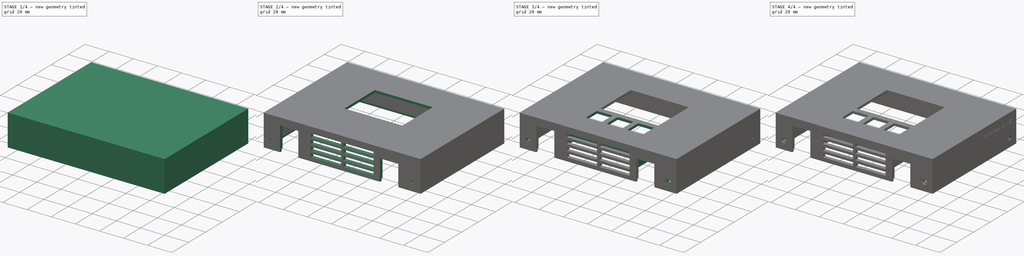
[diagram: build sequence overview — one tinted view per stage of 4, left to right]
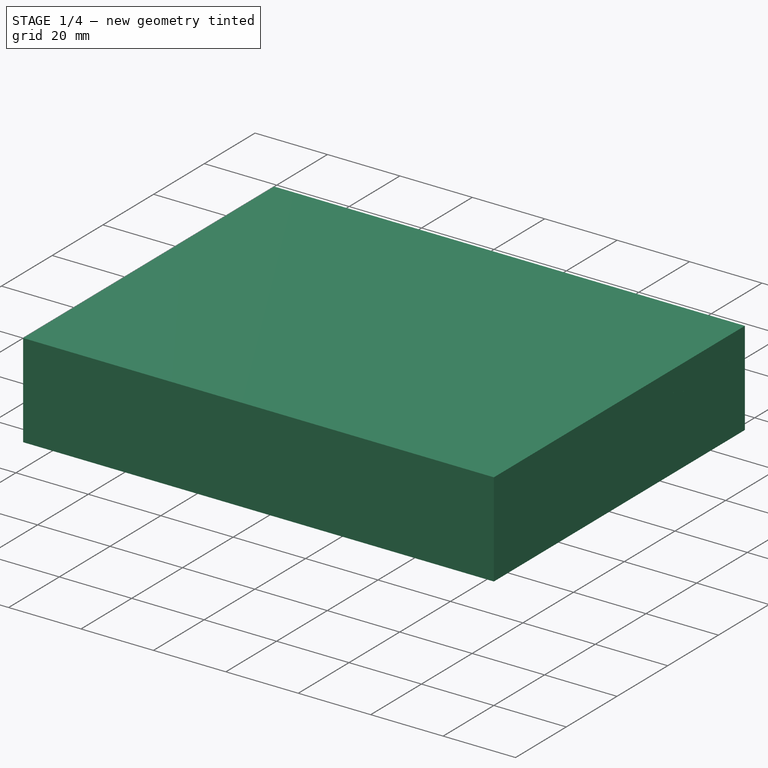
[diagram: stage 1 of 4 — iso view after this stage's code; geometry added in this stage tinted green]
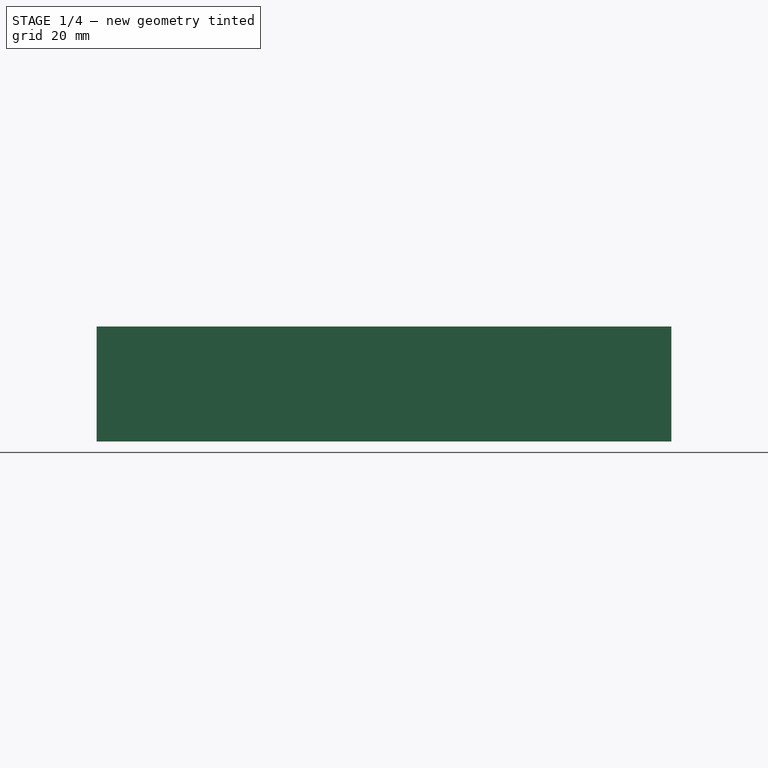
[diagram: stage 1 of 4 — front view after this stage's code; geometry added in this stage tinted green]
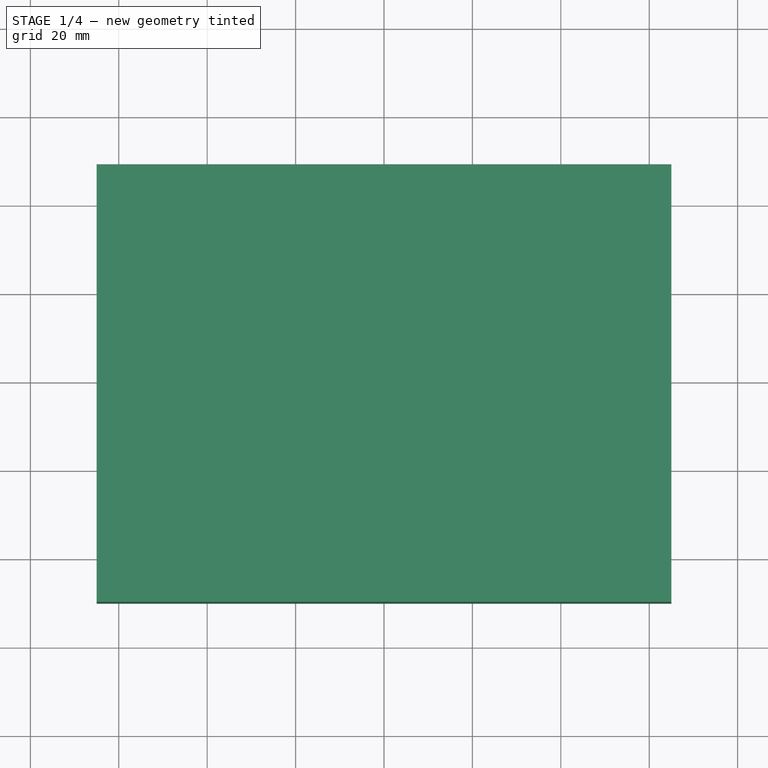
[diagram: stage 1 of 4 — top view after this stage's code; geometry added in this stage tinted green]
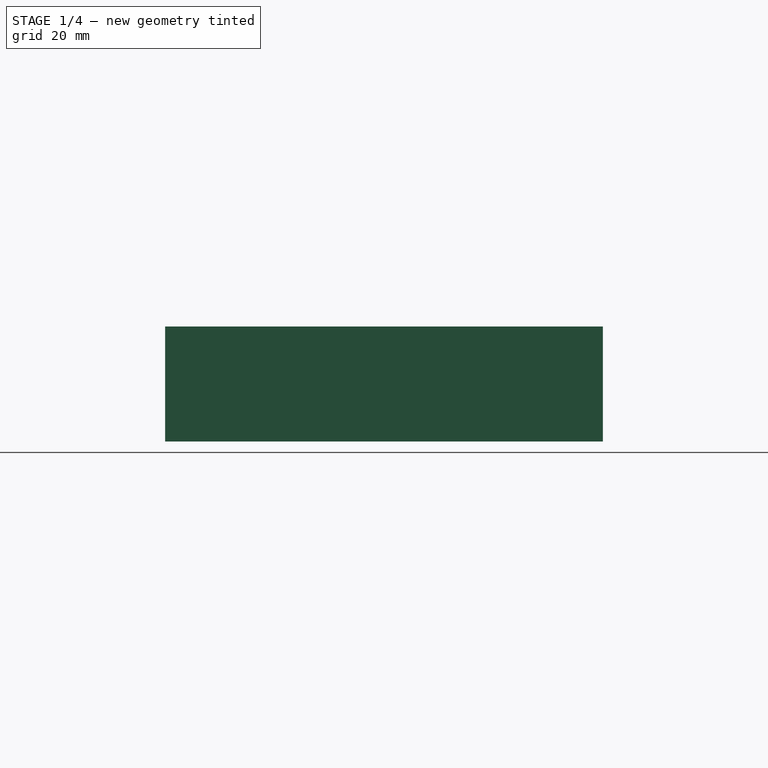
[diagram: stage 1 of 4 — right view after this stage's code; geometry added in this stage tinted green]
FCSTD DOCUMENT  (FreeCAD 0.19R24276 (Git))
Label: wall-sensor-of-room-temperature-top-part
License: All rights reserved
LicenseURL: http://en.wikipedia.org/wiki/All_rights_reserved
objects: Part::Feature×18, Sketcher::SketchObject×8, PartDesign::Pocket×4, PartDesign::Hole×4, PartDesign::Pad×3, Part::Part2DObjectPython×2, PartDesign::FeatureBase×1, PartDesign::Body×1, Part::Extrusion×1, Part::Cut×1
note: 54 computed .brp shape members not serialized (recipe doc carries the construction recipe); baked Part::Feature solids carry a one-line shape summary decoded from their .brp

FEATURE [Sketcher::SketchObject] Sketch
  FullyConstrained = true
  MapMode = 5
  Support = -> [XY_Plane]
  sketch-geometry (4):
    g0: LineSegment StartX=-65 StartY=49 StartZ=0 EndX=65 EndY=49 EndZ=0
    g1: LineSegment StartX=65 StartY=49 StartZ=0 EndX=65 EndY=-50 EndZ=0
    g2: LineSegment StartX=65 StartY=-50 StartZ=0 EndX=-65 EndY=-50 EndZ=0
    g3: LineSegment StartX=-65 StartY=-50 StartZ=0 EndX=-65 EndY=49 EndZ=0
  constraints (12):
    c: Coincident(g0,g1)
    c: Coincident(g1,g2)
    c: Coincident(g2,g3)
    c: Coincident(g3,g0)
    c: Horizontal(g0)
    c: Horizontal(g2)
    c: Vertical(g1)
    c: Vertical(g3)
    c: DistanceX(g-1,g0) = 65
    c: DistanceY(g-1,g0) = 49
    c: DistanceX(g0,g-1) = 65
    c: DistanceY(g1,g-1) = 50
FEATURE [Part::Feature] Wire044
  Placement = pos=(-53.5,45,0) rot=(0,0,1;0rad)
  shape: bbox 12.7 x 12.7 x 2e-07 mm, 0 faces, 0 solids (baked)
FEATURE [Part::Feature] Wire045
  Placement = pos=(-53.5,45,0) rot=(0,0,1;0rad)
  shape: bbox 12.67 x 12.7 x 2e-07 mm, 0 faces, 0 solids (baked)
FEATURE [Part::Feature] Wire046
  Placement = pos=(-53.5,45,0) rot=(0,0,1;0rad)
  shape: bbox 12.7 x 12.7 x 2e-07 mm, 0 faces, 0 solids (baked)
FEATURE [Part::Feature] Wire047
  Placement = pos=(-53.5,45,0) rot=(0,0,1;0rad)
  shape: bbox 2e-07 x 2.54 x 2e-07 mm, 0 faces, 0 solids (baked)
FEATURE [Part::Feature] Wire048
  Placement = pos=(-53.5,45,0) rot=(0,0,1;0rad)
  shape: bbox 3.81 x 2e-07 x 2e-07 mm, 0 faces, 0 solids (baked)
FEATURE [Part::Feature] Wire049 .. Wire055  x7 (patterned run collapsed; names and placements below)
  shape: bbox 2.2 x 2.2 x 2e-07 mm, 0 faces, 0 solids (baked)
  placements: all 7 at pos=(-53.5,45,0) rot=(0,0,1;0rad)
FEATURE [Part::Feature] Wire056
  Placement = pos=(-53.5,45,0) rot=(0,0,1;0rad)
  shape: bbox 107 x 90.03 x 2e-07 mm, 0 faces, 0 solids (baked)
FEATURE [Part::Feature] Wire057
  Placement = pos=(-53.5,45,0) rot=(0,0,1;0rad)
  shape: bbox 2.921 x 11.81 x 2e-07 mm, 0 faces, 0 solids (baked)
FEATURE [Part::Feature] Wire058
  Placement = pos=(-53.5,45,0) rot=(0,0,1;0rad)
  shape: bbox 2.9 x 28.3 x 2e-07 mm, 0 faces, 0 solids (baked)
FEATURE [Part::Feature] Wire059
  Placement = pos=(-53.5,45,0) rot=(0,0,1;0rad)
  shape: bbox 30.97 x 2.9 x 2e-07 mm, 0 faces, 0 solids (baked)
FEATURE [Part::Feature] Wire060
  Placement = pos=(-53.5,45,0) rot=(0,0,1;0rad)
  shape: bbox 2.2 x 2.2 x 2e-07 mm, 0 faces, 0 solids (baked)
FEATURE [Part::Feature] Wire061
  Placement = pos=(-53.5,45,0) rot=(0,0,1;0rad)
  shape: bbox 2.2 x 2.2 x 2e-07 mm, 0 faces, 0 solids (baked)
FEATURE [PartDesign::FeatureBase] BaseFeature
  BaseFeature = -> Wire059
FEATURE [PartDesign::Pad] Pad
  BaseFeature = -> BaseFeature
  Direction = (1,1,1)
  Length = 2
  Length2 = 100
  Profile = -> Sketch
  Reversed = true
  Type = 0
FEATURE [Sketcher::SketchObject] Sketch001  label="walls"
  FullyConstrained = false
  MapMode = 5
  Placement = pos=(0,0,-2) rot=(1,0,0;3.14159rad)
  Support = -> [Pad]
  sketch-geometry (8):
    g0: LineSegment StartX=-65 StartY=50 StartZ=0 EndX=65 EndY=50 EndZ=0
    g1: LineSegment StartX=65 StartY=50 StartZ=0 EndX=65 EndY=-49 EndZ=0
    g2: LineSegment StartX=65 StartY=-49 StartZ=0 EndX=-65 EndY=-49 EndZ=0
    g3: LineSegment StartX=-65 StartY=-49 StartZ=0 EndX=-65 EndY=50 EndZ=0
    g4: LineSegment StartX=-62 StartY=47 StartZ=0 EndX=62 EndY=47 EndZ=0
    g5: LineSegment StartX=62 StartY=47 StartZ=0 EndX=62 EndY=-46 EndZ=0
    g6: LineSegment StartX=-62 StartY=47 StartZ=0 EndX=-62 EndY=-46 EndZ=0
    g7: LineSegment StartX=-62 StartY=-46 StartZ=0 EndX=62 EndY=-46 EndZ=0
  constraints (16):
    c: Horizontal(g0)
    c: Coincident(g1,g0)
    c: Vertical(g1)
    c: Coincident(g2,g1)
    c: Horizontal(g2)
    c: Coincident(g3,g2)
    c: Coincident(g3,g0)
    c: Vertical(g3)
    c: Horizontal(g4)
    c: Coincident(g5,g4)
    c: Vertical(g5)
    c: Coincident(g6,g4)
    c: Vertical(g6)
    c: Coincident(g7,g6)
    c: Coincident(g7,g5)
    c: Horizontal(g7)
FEATURE [PartDesign::Pad] Pad001
  BaseFeature = -> Pad
  Direction = (1,1,1)
  Length = 24
  Length2 = 100
  Profile = -> Sketch001
  Type = 0
FEATURE [PartDesign::Body] Body
  BaseFeature = -> Wire059
  Group = -> [BaseFeature,Sketch,Pad,Sketch001,Pad001,Sketch002,Pocket,Sketch003,Pocket001,Sketch004,Pocket002,Sketch005,Pocket003,Sketch006,Pad002,ShapeString,Sketch007,Hole,Hole001,Hole002,Hole003]
  Origin = -> Origin
  Tip = -> Hole003
FEATURE [Part::Part2DObjectPython] ShapeString001  # Draft 2D object (typed FeaturePython)
  FontFile = <path>
  Placement = pos=(65,11,-8) rot=(0.57735,0.57735,0.57735;2.0944rad)
  Size = 3
  String = roman-labovsky.cz
  Tracking = 0
FEATURE [Part::Extrusion] Extrude
  Base = -> ShapeString001
  Dir = (1,0,0)
  DirMode = 2
  FaceMakerClass = Part::FaceMakerBullseye
  LengthFwd = 0.7
  LengthRev = 0
  Reversed = true
  Solid = false
  Symmetric = false
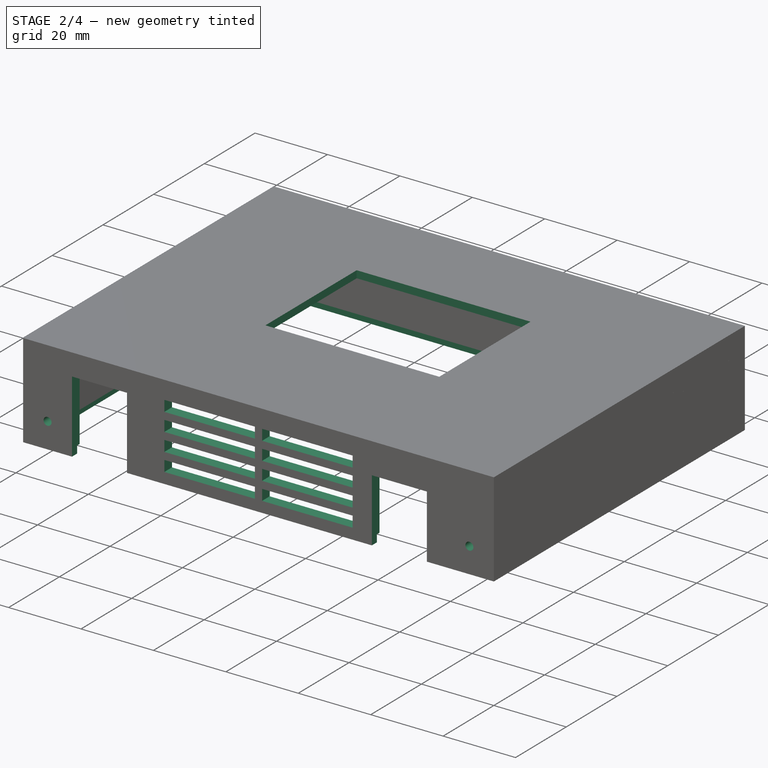
[diagram: stage 2 of 4 — iso view after this stage's code; geometry added in this stage tinted green]
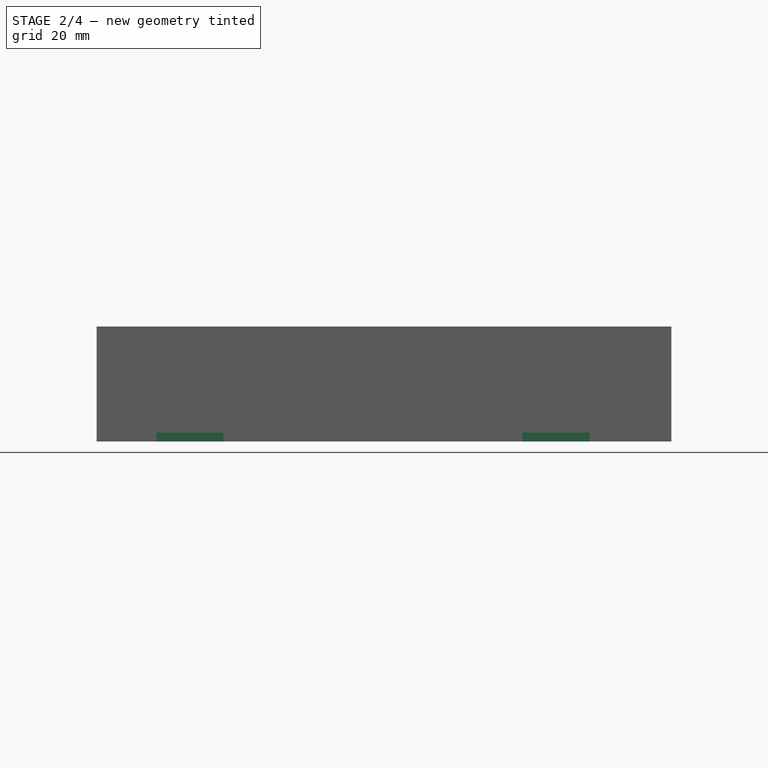
[diagram: stage 2 of 4 — front view after this stage's code; geometry added in this stage tinted green]
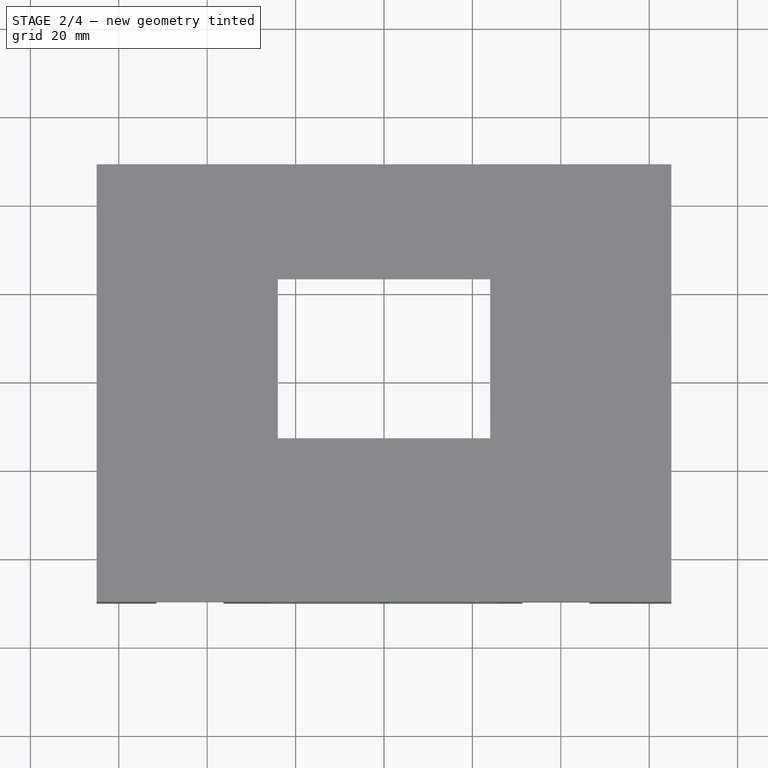
[diagram: stage 2 of 4 — top view after this stage's code; geometry added in this stage tinted green]
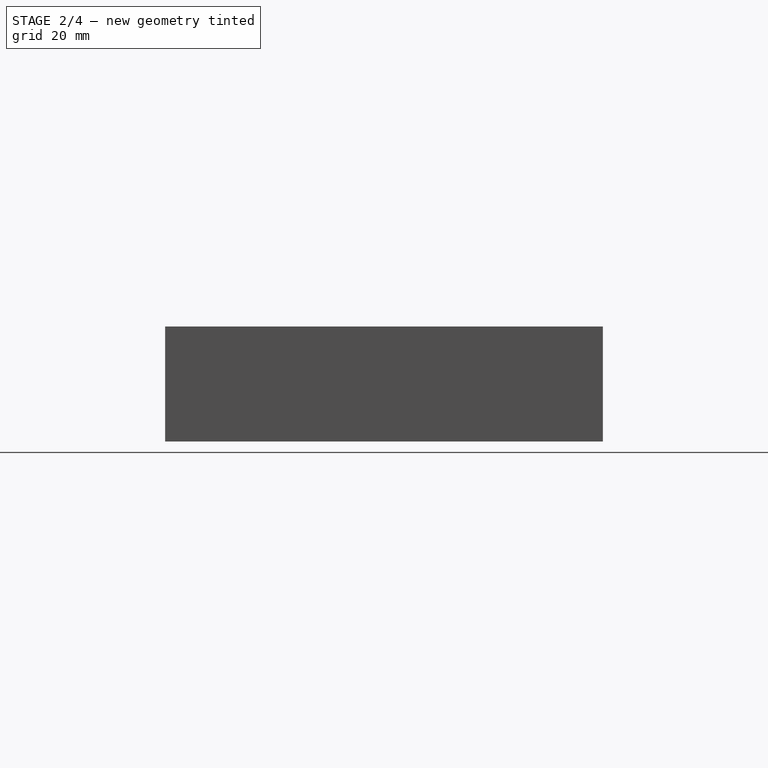
[diagram: stage 2 of 4 — right view after this stage's code; geometry added in this stage tinted green]
FEATURE [Sketcher::SketchObject] Sketch002  label="bottom_part_rabbet"
  FullyConstrained = false
  MapMode = 5
  Placement = pos=(0,0,-26) rot=(1,0,0;3.14159rad)
  Support = -> [Pad001]
  sketch-geometry (8):
    g0: LineSegment StartX=-63 StartY=48 StartZ=0 EndX=63 EndY=48 EndZ=0
    g1: LineSegment StartX=63 StartY=48 StartZ=0 EndX=63 EndY=-47 EndZ=0
    g2: LineSegment StartX=63 StartY=-47 StartZ=0 EndX=-63 EndY=-47 EndZ=0
    g3: LineSegment StartX=-63 StartY=-47 StartZ=0 EndX=-63 EndY=48 EndZ=0
    g4: LineSegment StartX=-62 StartY=47 StartZ=0 EndX=62 EndY=47 EndZ=0
    g5: LineSegment StartX=62 StartY=47 StartZ=0 EndX=62 EndY=-46 EndZ=0
    g6: LineSegment StartX=62 StartY=-46 StartZ=0 EndX=-62 EndY=-46 EndZ=0
    g7: LineSegment StartX=-62 StartY=-46 StartZ=0 EndX=-62 EndY=47 EndZ=0
  constraints (16):
    c: Horizontal(g0)
    c: Coincident(g1,g0)
    c: Vertical(g1)
    c: Coincident(g2,g1)
    c: Horizontal(g2)
    c: Coincident(g3,g2)
    c: Coincident(g3,g0)
    c: Vertical(g3)
    c: Horizontal(g4)
    c: Coincident(g5,g4)
    c: Vertical(g5)
    c: Coincident(g6,g5)
    c: Horizontal(g6)
    c: Coincident(g7,g6)
    c: Coincident(g7,g4)
    c: Vertical(g7)
FEATURE [PartDesign::Pocket] Pocket
  BaseFeature = -> Pad001
  Length = 2
  Length2 = 100
  Profile = -> Sketch002
  Type = 0
FEATURE [Sketcher::SketchObject] Sketch003  label="fron_holes"
  FullyConstrained = false
  MapMode = 5
  Placement = pos=(0,-50,0) rot=(1,0,0;1.5708rad)
  Support = -> [Pocket]
  sketch-geometry (42):
    g0: LineSegment StartX=-26 StartY=-5 StartZ=0 EndX=-1 EndY=-5 EndZ=0
    g1: LineSegment StartX=-1 StartY=-5 StartZ=0 EndX=-1 EndY=-8 EndZ=0
    g2: LineSegment StartX=-1 StartY=-8 StartZ=0 EndX=-26 EndY=-8 EndZ=0
    g3: LineSegment StartX=-26 StartY=-8 StartZ=0 EndX=-26 EndY=-5 EndZ=0
    g4: LineSegment StartX=-26 StartY=-10 StartZ=0 EndX=-1 EndY=-10 EndZ=0
    g5: LineSegment StartX=-1 StartY=-10 StartZ=0 EndX=-1 EndY=-13 EndZ=0
    g6: LineSegment StartX=-1 StartY=-13 StartZ=0 EndX=-26 EndY=-13 EndZ=0
    g7: LineSegment StartX=-26 StartY=-13 StartZ=0 EndX=-26 EndY=-10 EndZ=0
    g8: LineSegment StartX=-26 StartY=-15 StartZ=0 EndX=-1 EndY=-15 EndZ=0
    g9: LineSegment StartX=-1 StartY=-15 StartZ=0 EndX=-1 EndY=-18 EndZ=0
    g10: LineSegment StartX=-1 StartY=-18 StartZ=0 EndX=-26 EndY=-18 EndZ=0
    g11: LineSegment StartX=-26 StartY=-18 StartZ=0 EndX=-26 EndY=-15 EndZ=0
    g12: LineSegment StartX=-26 StartY=-20 StartZ=0 EndX=-1 EndY=-20 EndZ=0
    g13: LineSegment StartX=-1 StartY=-20 StartZ=0 EndX=-1 EndY=-23 EndZ=0
    g14: LineSegment StartX=-1 StartY=-23 StartZ=0 EndX=-26 EndY=-23 EndZ=0
    g15: LineSegment StartX=-26 StartY=-23 StartZ=0 EndX=-26 EndY=-20 EndZ=0
    g16: LineSegment StartX=1 StartY=-5 StartZ=0 EndX=26 EndY=-5 EndZ=0
    g17: LineSegment StartX=26 StartY=-5 StartZ=0 EndX=26 EndY=-8 EndZ=0
    g18: LineSegment StartX=26 StartY=-8 StartZ=0 EndX=1 EndY=-8 EndZ=0
    g19: LineSegment StartX=1 StartY=-8 StartZ=0 EndX=1 EndY=-5 EndZ=0
    g20: LineSegment StartX=1 StartY=-10 StartZ=0 EndX=26 EndY=-10 EndZ=0
    g21: LineSegment StartX=26 StartY=-10 StartZ=0 EndX=26 EndY=-13 EndZ=0
    g22: LineSegment StartX=26 StartY=-13 StartZ=0 EndX=1 EndY=-13 EndZ=0
    g23: LineSegment StartX=1 StartY=-13 StartZ=0 EndX=1 EndY=-10 EndZ=0
    g24: LineSegment StartX=1 StartY=-15 StartZ=0 EndX=26 EndY=-15 EndZ=0
    g25: LineSegment StartX=26 StartY=-15 StartZ=0 EndX=26 EndY=-18 EndZ=0
    g26: LineSegment StartX=26 StartY=-18 StartZ=0 EndX=1 EndY=-18 EndZ=0
    g27: LineSegment StartX=1 StartY=-18 StartZ=0 EndX=1 EndY=-15 EndZ=0
    g28: LineSegment StartX=1 StartY=-20 StartZ=0 EndX=26 EndY=-20 EndZ=0
    g29: LineSegment StartX=26 StartY=-20 StartZ=0 EndX=26 EndY=-23 EndZ=0
    g30: LineSegment StartX=26 StartY=-23 StartZ=0 EndX=1 EndY=-23 EndZ=0
    g31: LineSegment StartX=1 StartY=-23 StartZ=0 EndX=1 EndY=-20 EndZ=0
    g32: LineSegment StartX=-51.5 StartY=-26 StartZ=0 EndX=-51.5 EndY=-6 EndZ=0
    g33: LineSegment StartX=-51.5 StartY=-6 StartZ=0 EndX=-36.3 EndY=-6 EndZ=0
    g34: LineSegment StartX=-36.3 StartY=-6 StartZ=0 EndX=-36.3 EndY=-26 EndZ=0
    g35: LineSegment StartX=-36.3 StartY=-26 StartZ=0 EndX=-51.5 EndY=-26 EndZ=0
    g36: LineSegment StartX=46.5 StartY=-26 StartZ=0 EndX=46.5 EndY=-8.5 EndZ=0
    g37: LineSegment StartX=46.5 StartY=-8.5 StartZ=0 EndX=31.3 EndY=-8.5 EndZ=0
    g38: LineSegment StartX=31.3 StartY=-8.5 StartZ=0 EndX=31.3 EndY=-26 EndZ=0
    g39: LineSegment StartX=31.3 StartY=-26 StartZ=0 EndX=46.5 EndY=-26 EndZ=0
    g40: Circle CenterX=-58.25 CenterY=-19 CenterZ=0 NormalX=0 NormalY=0 NormalZ=1 AngleXU=0 Radius=1.1
    g41: Circle CenterX=58.2403 CenterY=-19 CenterZ=0 NormalX=0 NormalY=0 NormalZ=1 AngleXU=0 Radius=1.1
  constraints (83):
    c: Coincident(g1,g2)
    c: Coincident(g2,g3)
    c: Coincident(g3,g0)
    c: Horizontal(g0)
    c: Horizontal(g2)
    c: Vertical(g1)
    c: Vertical(g3)
    c: Coincident(g4,g5)
    c: Coincident(g5,g6)
    c: Coincident(g6,g7)
    c: Coincident(g7,g4)
    c: Horizontal(g4)
    c: Horizontal(g6)
    c: Vertical(g5)
    c: Vertical(g7)
    c: Coincident(g8,g9)
    c: Coincident(g9,g10)
    c: Coincident(g10,g11)
    c: Coincident(g11,g8)
    c: Horizontal(g8)
    c: Horizontal(g10)
    c: Vertical(g9)
    c: Vertical(g11)
    c: Coincident(g12,g13)
    c: Coincident(g13,g14)
    c: Coincident(g14,g15)
    c: Coincident(g15,g12)
    c: Horizontal(g12)
    c: Horizontal(g14)
    c: Vertical(g13)
    c: Vertical(g15)
    c: DistanceX(g0,g-1) = 26
    c: Coincident(g16,g17)
    c: Coincident(g17,g18)
    c: Coincident(g18,g19)
    c: Coincident(g19,g16)
    c: Horizontal(g16)
    c: Horizontal(g18)
    c: Vertical(g17)
    c: Vertical(g19)
    c: DistanceX(g-1,g16) = 26
    c: Coincident(g20,g21)
    c: Coincident(g21,g22)
    c: Coincident(g22,g23)
    c: Coincident(g23,g20)
    c: Horizontal(g20)
    c: Horizontal(g22)
    c: Vertical(g21)
    c: Vertical(g23)
    c: Coincident(g24,g25)
    c: Coincident(g25,g26)
    c: Coincident(g26,g27)
    c: Coincident(g27,g24)
    c: Horizontal(g24)
    c: Horizontal(g26)
    c: Vertical(g25)
    c: Vertical(g27)
    c: Coincident(g28,g29)
    c: Coincident(g29,g30)
    c: Coincident(g30,g31)
    c: Coincident(g31,g28)
    c: Horizontal(g28)
    c: Horizontal(g30)
    c: Vertical(g29)
    c: Vertical(g31)
    c: Vertical(g32)
    c: Coincident(g33,g32)
    c: Horizontal(g33)
    c: Coincident(g34,g33)
    c: Vertical(g34)
    c: Coincident(g35,g34)
    c: Coincident(g35,g32)
    c: Horizontal(g35)
    c: Vertical(g36)
    c: Coincident(g37,g36)
    c: Horizontal(g37)
    c: Coincident(g38,g37)
    c: Vertical(g38)
    c: Coincident(g39,g38)
    c: Coincident(g39,g36)
    c: Horizontal(g39)
    c: Diameter(g40) = 2.2
    c: Diameter(g41) = 2.2
FEATURE [PartDesign::Pocket] Pocket001
  BaseFeature = -> Pocket
  Length = 5
  Length2 = 100
  Profile = -> Sketch003
  Type = 0
FEATURE [Sketcher::SketchObject] Sketch004  label="display_hole"
  FullyConstrained = false
  MapMode = 5
  Support = -> [Pocket001]
  sketch-geometry (4):
    g0: LineSegment StartX=-24 StartY=23 StartZ=0 EndX=24 EndY=23 EndZ=0
    g1: LineSegment StartX=24 StartY=23 StartZ=0 EndX=24 EndY=-13 EndZ=0
    g2: LineSegment StartX=24 StartY=-13 StartZ=0 EndX=-24 EndY=-13 EndZ=0
    g3: LineSegment StartX=-24 StartY=-13 StartZ=0 EndX=-24 EndY=23 EndZ=0
  constraints (9):
    c: Coincident(g0,g1)
    c: Coincident(g1,g2)
    c: Coincident(g2,g3)
    c: Coincident(g3,g0)
    c: Horizontal(g0)
    c: Horizontal(g2)
    c: Vertical(g1)
    c: Vertical(g3)
    c: DistanceX(g0,g0) = 48
FEATURE [PartDesign::Pocket] Pocket002
  BaseFeature = -> Pocket001
  Length = 2
  Length2 = 100
  Profile = -> Sketch004
  Type = 0
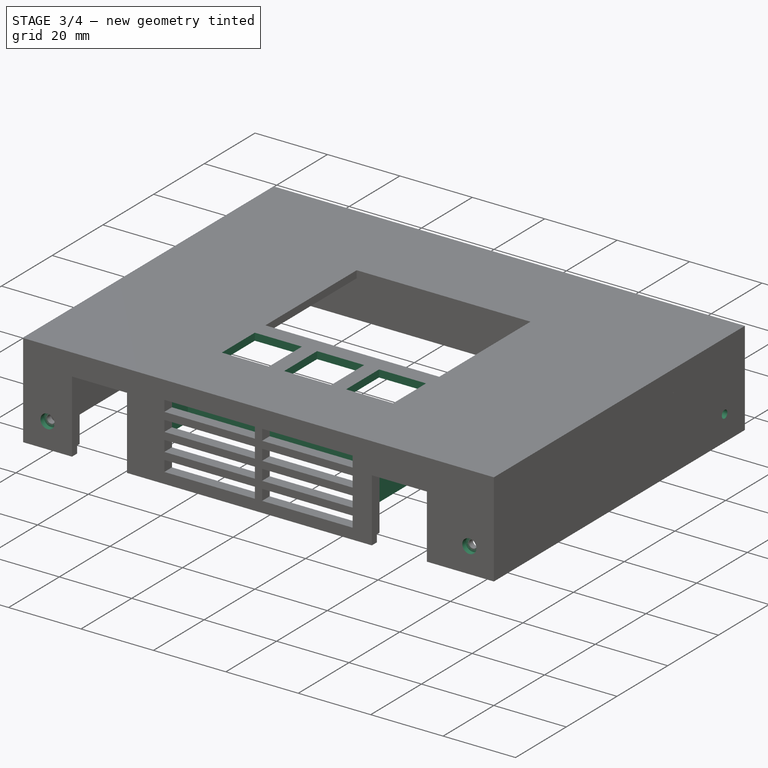
[diagram: stage 3 of 4 — iso view after this stage's code; geometry added in this stage tinted green]
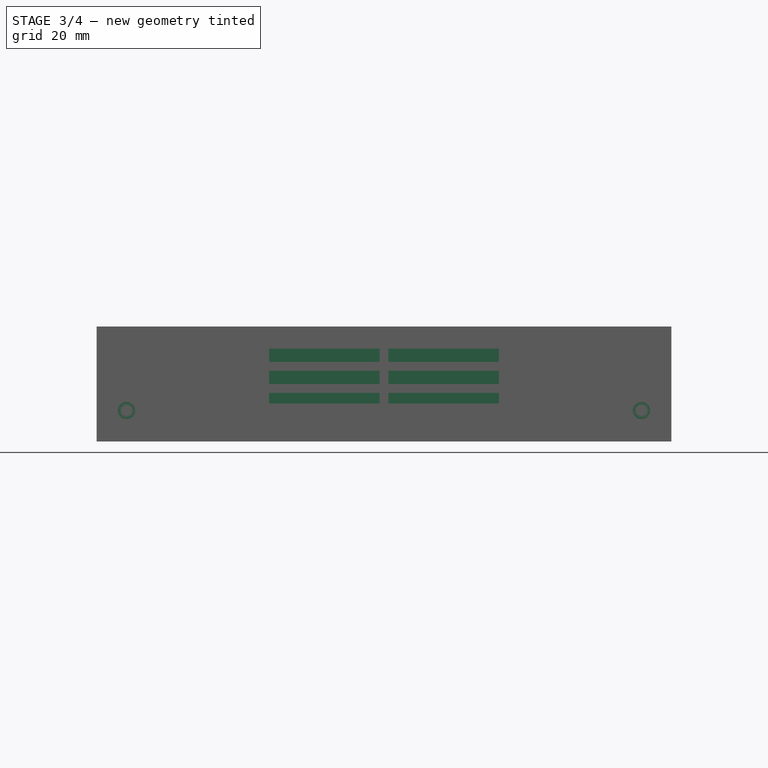
[diagram: stage 3 of 4 — front view after this stage's code; geometry added in this stage tinted green]
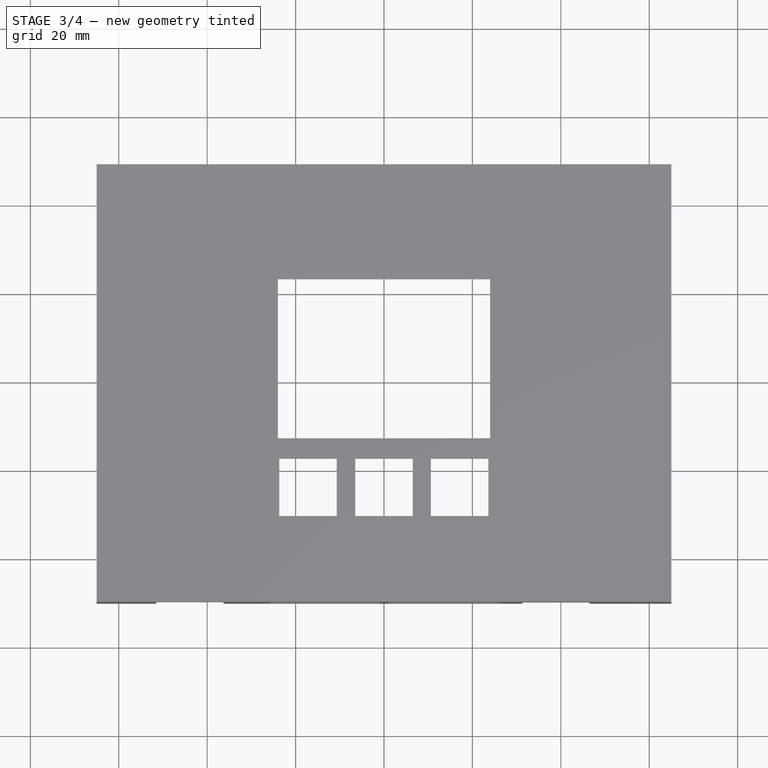
[diagram: stage 3 of 4 — top view after this stage's code; geometry added in this stage tinted green]
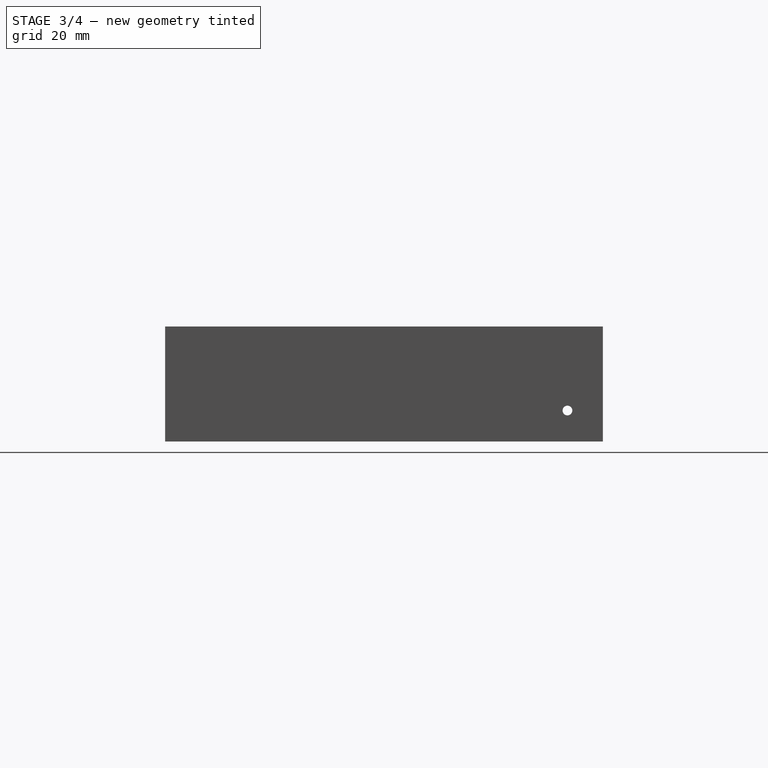
[diagram: stage 3 of 4 — right view after this stage's code; geometry added in this stage tinted green]
FEATURE [Sketcher::SketchObject] Sketch005  label="button_hole"
  FullyConstrained = false
  MapMode = 5
  Support = -> [Pocket002]
  sketch-geometry (12):
    g0: LineSegment StartX=-23.7 StartY=-17.6 StartZ=0 EndX=-10.7 EndY=-17.6 EndZ=0
    g1: LineSegment StartX=-10.7 StartY=-17.6 StartZ=0 EndX=-10.7 EndY=-30.6 EndZ=0
    g2: LineSegment StartX=-10.7 StartY=-30.6 StartZ=0 EndX=-23.7 EndY=-30.6 EndZ=0
    g3: LineSegment StartX=-23.7 StartY=-30.6 StartZ=0 EndX=-23.7 EndY=-17.6 EndZ=0
    g4: LineSegment StartX=-6.5 StartY=-17.6 StartZ=0 EndX=6.5 EndY=-17.6 EndZ=0
    g5: LineSegment StartX=6.5 StartY=-17.6 StartZ=0 EndX=6.5 EndY=-30.6 EndZ=0
    g6: LineSegment StartX=6.5 StartY=-30.6 StartZ=0 EndX=-6.5 EndY=-30.6 EndZ=0
    g7: LineSegment StartX=-6.5 StartY=-30.6 StartZ=0 EndX=-6.5 EndY=-17.6 EndZ=0
    g8: LineSegment StartX=10.6 StartY=-17.6 StartZ=0 EndX=23.6 EndY=-17.6 EndZ=0
    g9: LineSegment StartX=23.6 StartY=-17.6 StartZ=0 EndX=23.6 EndY=-30.6 EndZ=0
    g10: LineSegment StartX=23.6 StartY=-30.6 StartZ=0 EndX=10.6 EndY=-30.6 EndZ=0
    g11: LineSegment StartX=10.6 StartY=-30.6 StartZ=0 EndX=10.6 EndY=-17.6 EndZ=0
  constraints (24):
    c: Coincident(g0,g1)
    c: Coincident(g1,g2)
    c: Coincident(g2,g3)
    c: Coincident(g3,g0)
    c: Horizontal(g0)
    c: Horizontal(g2)
    c: Vertical(g1)
    c: Vertical(g3)
    c: Coincident(g4,g5)
    c: Coincident(g5,g6)
    c: Coincident(g6,g7)
    c: Coincident(g7,g4)
    c: Horizontal(g4)
    c: Horizontal(g6)
    c: Vertical(g5)
    c: Vertical(g7)
    c: Coincident(g8,g9)
    c: Coincident(g9,g10)
    c: Coincident(g10,g11)
    c: Coincident(g11,g8)
    c: Horizontal(g8)
    c: Horizontal(g10)
    c: Vertical(g9)
    c: Vertical(g11)
FEATURE [PartDesign::Pocket] Pocket003
  BaseFeature = -> Pocket002
  Length = 2
  Length2 = 100
  Profile = -> Sketch005
  Type = 0
FEATURE [Sketcher::SketchObject] Sketch006  label="partition_temp_sensor"
  FullyConstrained = false
  MapMode = 5
  Support = -> [Pocket001]
  sketch-geometry (8):
    g0: LineSegment StartX=-32 StartY=-47 StartZ=0 EndX=-30 EndY=-47 EndZ=0
    g1: LineSegment StartX=-30 StartY=-47 StartZ=0 EndX=-30 EndY=-35 EndZ=0
    g2: LineSegment StartX=-30 StartY=-35 StartZ=0 EndX=28 EndY=-35 EndZ=0
    g3: LineSegment StartX=28 StartY=-35 StartZ=0 EndX=28 EndY=-47 EndZ=0
    g4: LineSegment StartX=28 StartY=-47 StartZ=0 EndX=30 EndY=-47 EndZ=0
    g5: LineSegment StartX=30 StartY=-47 StartZ=0 EndX=30 EndY=-33 EndZ=0
    g6: LineSegment StartX=30 StartY=-33 StartZ=0 EndX=-32 EndY=-33 EndZ=0
    g7: LineSegment StartX=-32 StartY=-33 StartZ=0 EndX=-32 EndY=-47 EndZ=0
  constraints (16):
    c: Horizontal(g0)
    c: Coincident(g1,g0)
    c: Vertical(g1)
    c: Coincident(g2,g1)
    c: Horizontal(g2)
    c: Coincident(g3,g2)
    c: Vertical(g3)
    c: Coincident(g4,g3)
    c: Horizontal(g4)
    c: Coincident(g5,g4)
    c: Vertical(g5)
    c: Coincident(g6,g5)
    c: Horizontal(g6)
    c: Coincident(g7,g6)
    c: Coincident(g7,g0)
    c: Vertical(g7)
FEATURE [PartDesign::Pad] Pad002
  BaseFeature = -> Pocket003
  Direction = (1,1,1)
  Length = 17.4
  Length2 = 100
  Profile = -> Sketch006
  Reversed = true
  Type = 0
FEATURE [Part::Part2DObjectPython] ShapeString  # Draft 2D object (typed FeaturePython)
  FontFile = <path>
  Placement = pos=(65,11,-7) rot=(0.57735,0.57735,0.57735;2.0944rad)
  Size = 3
  String = roman-labovsky.cz
  Tracking = 0
FEATURE [Sketcher::SketchObject] Sketch007  label="left"
  FullyConstrained = false
  MapMode = 5
  Placement = pos=(-65,0,0) rot=(0.57735,-0.57735,-0.57735;2.0944rad)
  Support = -> [Pad002]
  sketch-geometry (1):
    g0: Circle CenterX=-41 CenterY=-19 CenterZ=0 NormalX=0 NormalY=0 NormalZ=1 AngleXU=0 Radius=1.1
  constraints (1):
    c: Diameter(g0) = 2.2
FEATURE [PartDesign::Hole] Hole
  BaseFeature = -> Pad002
  Depth = 5
  DepthType = 1
  Diameter = 2.2
  DrillForDepth = false
  DrillPoint = 1
  DrillPointAngle = 111
  HoleCutCountersinkAngle = 90
  HoleCutCustomValues = false
  HoleCutDepth = 0
  HoleCutDiameter = 6.1
  HoleCutType = 0
  ModelActualThread = false
  Profile = -> Sketch007
  Tapered = false
  TaperedAngle = 0
  ThreadAngle = 0
  ThreadClass = 0
  ThreadCutOffInner = 0
  ThreadCutOffOuter = 0
  ThreadDirection = 0
  ThreadFit = 0
  ThreadPitch = 0
  ThreadSize = 0
  ThreadType = 0
  Threaded = false
FEATURE [PartDesign::Hole] Hole001
  BaseFeature = -> Hole
  Depth = 1.4
  DepthType = 0
  Diameter = 3.9
  DrillForDepth = false
  DrillPoint = 0
  DrillPointAngle = 118
  HoleCutCountersinkAngle = 90
  HoleCutCustomValues = false
  HoleCutDepth = 0
  HoleCutDiameter = 6.1
  HoleCutType = 0
  ModelActualThread = false
  Profile = -> Hole [Face27]
  Tapered = false
  TaperedAngle = 90
  ThreadAngle = 0
  ThreadClass = 0
  ThreadCutOffInner = 0
  ThreadCutOffOuter = 0
  ThreadDirection = 0
  ThreadFit = 0
  ThreadPitch = 0
  ThreadSize = 0
  ThreadType = 0
  Threaded = false
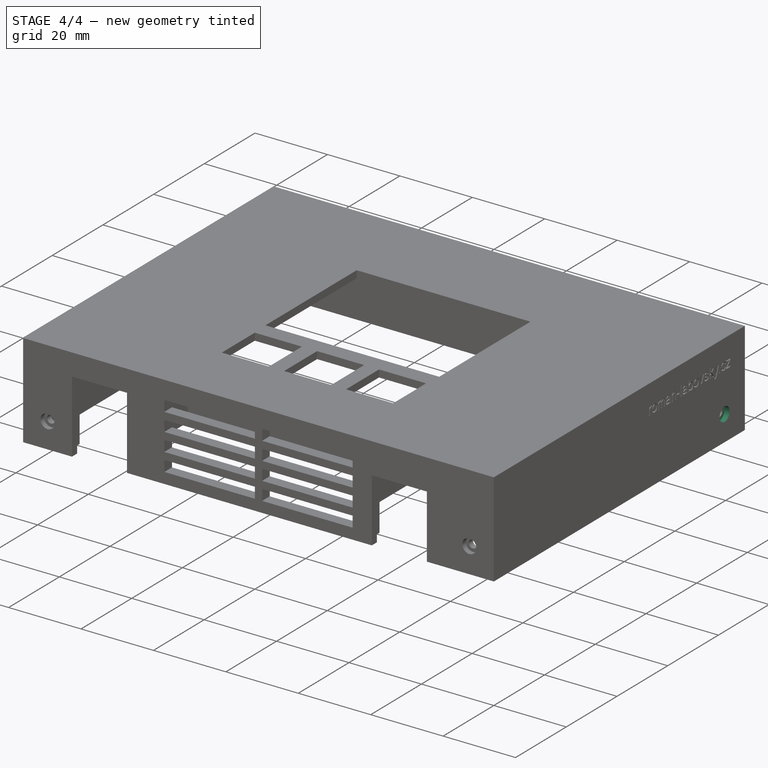
[diagram: stage 4 of 4 — iso view after this stage's code; geometry added in this stage tinted green]
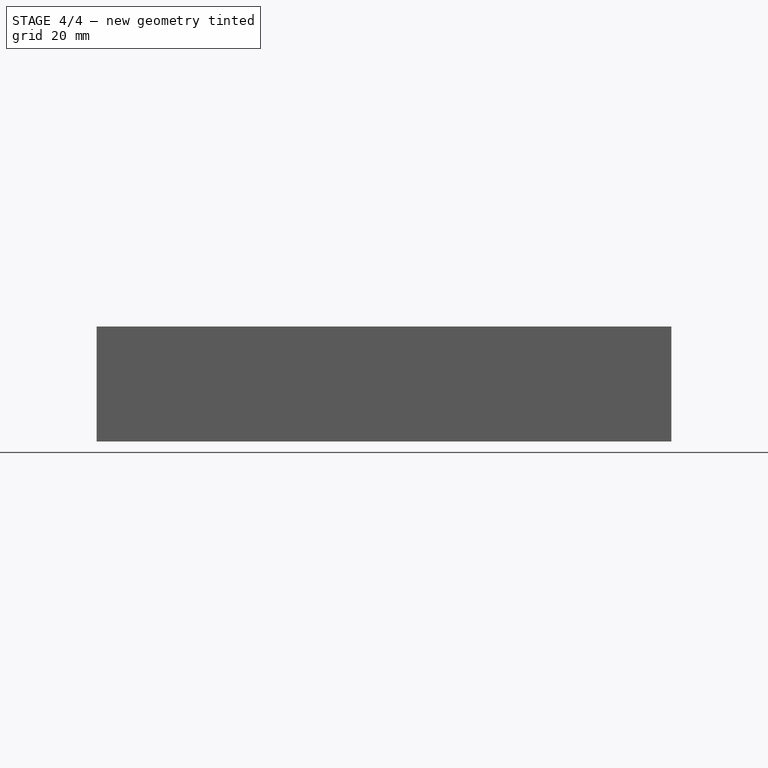
[diagram: stage 4 of 4 — front view after this stage's code; geometry added in this stage tinted green]
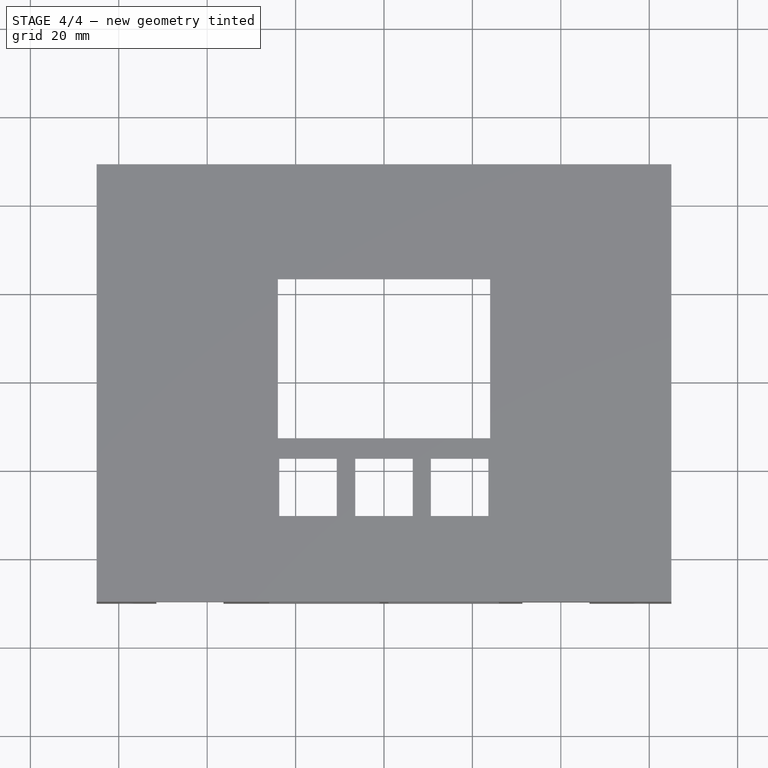
[diagram: stage 4 of 4 — top view after this stage's code; geometry added in this stage tinted green]
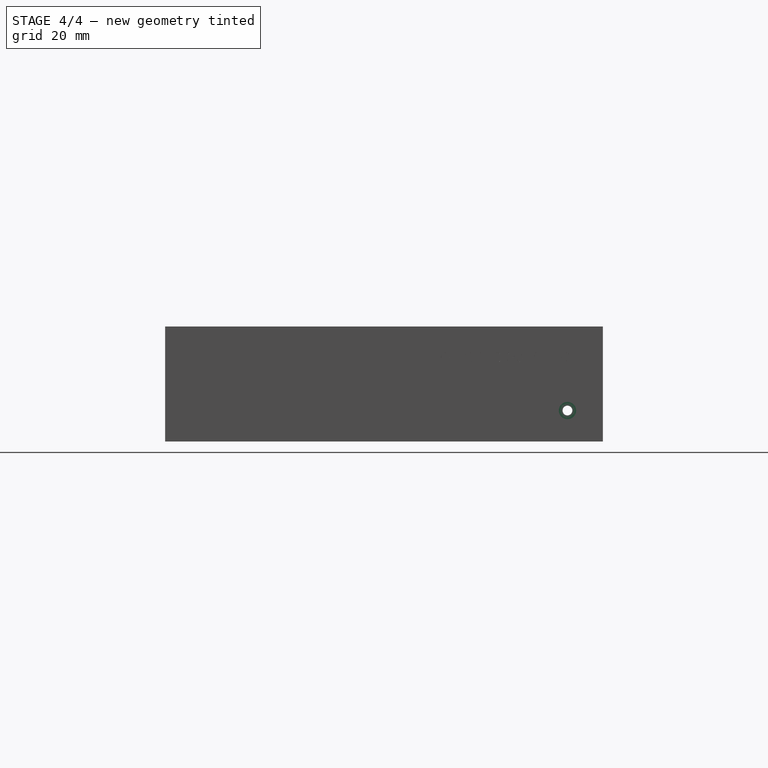
[diagram: stage 4 of 4 — right view after this stage's code; geometry added in this stage tinted green]
FEATURE [PartDesign::Hole] Hole002
  BaseFeature = -> Hole001
  Depth = 1.4
  DepthType = 0
  Diameter = 3.9
  DrillForDepth = false
  DrillPoint = 0
  DrillPointAngle = 118
  HoleCutCountersinkAngle = 90
  HoleCutCustomValues = false
  HoleCutDepth = 0
  HoleCutDiameter = 6.1
  HoleCutType = 0
  ModelActualThread = false
  Profile = -> Hole001 [Face7]
  Tapered = false
  TaperedAngle = 90
  ThreadAngle = 0
  ThreadClass = 0
  ThreadCutOffInner = 0
  ThreadCutOffOuter = 0
  ThreadDirection = 0
  ThreadFit = 0
  ThreadPitch = 0
  ThreadSize = 0
  ThreadType = 0
  Threaded = false
FEATURE [PartDesign::Hole] Hole003
  BaseFeature = -> Hole002
  Depth = 1.4
  DepthType = 0
  Diameter = 3.9
  DrillForDepth = false
  DrillPoint = 0
  DrillPointAngle = 118
  HoleCutCountersinkAngle = 90
  HoleCutCustomValues = false
  HoleCutDepth = 0
  HoleCutDiameter = 6.1
  HoleCutType = 0
  ModelActualThread = false
  Profile = -> Hole002 [Face8]
  Tapered = false
  TaperedAngle = 90
  ThreadAngle = 0
  ThreadClass = 0
  ThreadCutOffInner = 0
  ThreadCutOffOuter = 0
  ThreadDirection = 0
  ThreadFit = 0
  ThreadPitch = 0
  ThreadSize = 0
  ThreadType = 0
  Threaded = false
FEATURE [Part::Cut] Cut
  Base = -> Hole003
  Tool = -> Extrude
note: 2 file-system paths scrubbed to <path> (originals preserved in the JSON sidecar)
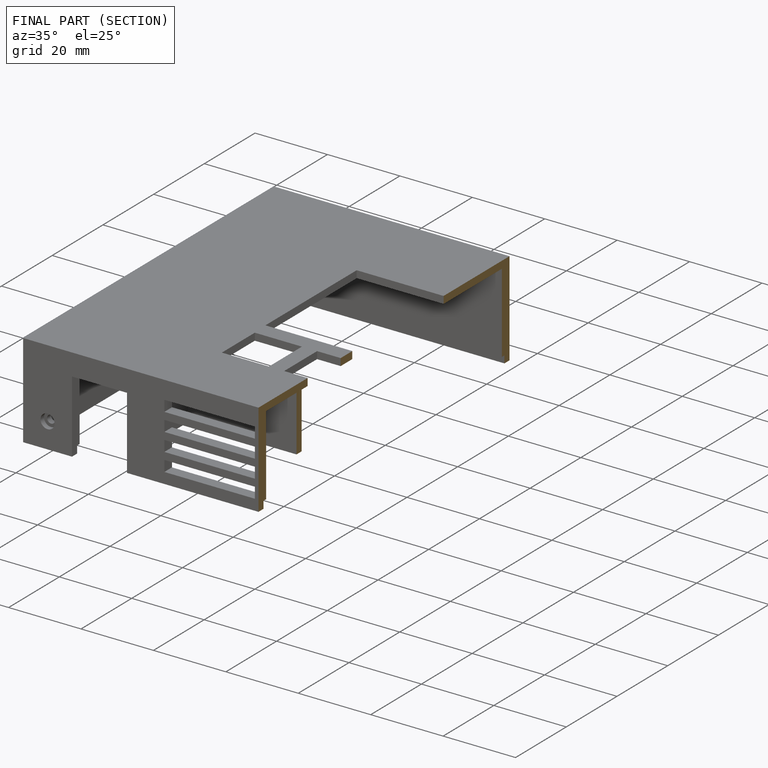
[diagram: finished part — half-section view (interior)]
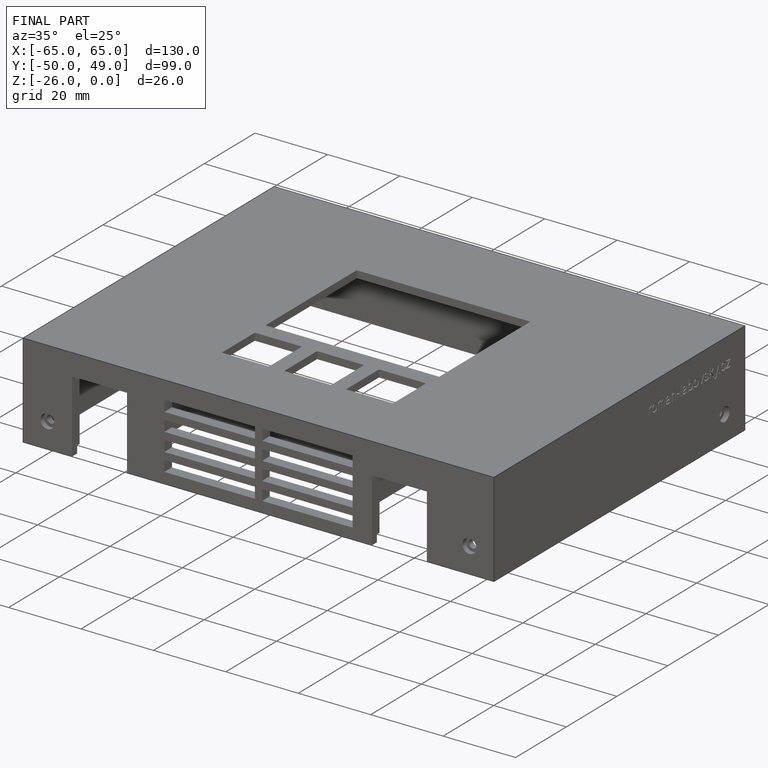
[diagram: finished part — iso view with bounding-box wireframe]
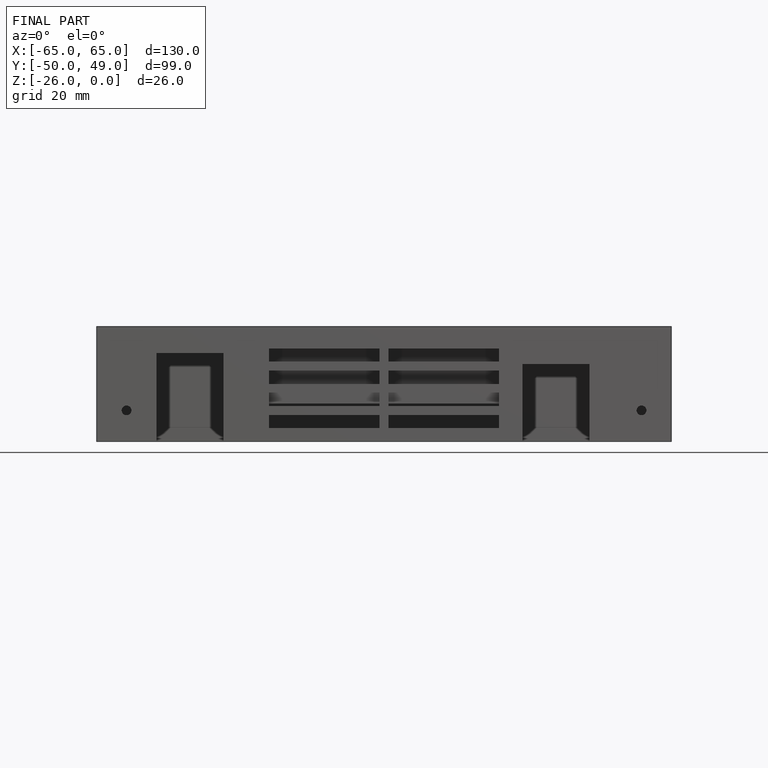
[diagram: finished part — front view with bounding-box wireframe]
